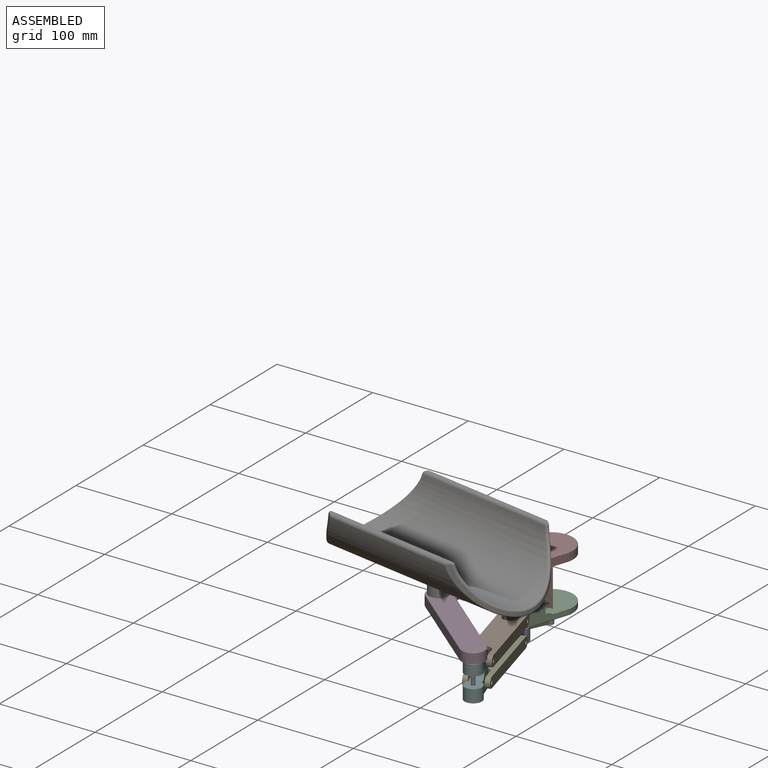
[diagram: assembled view]
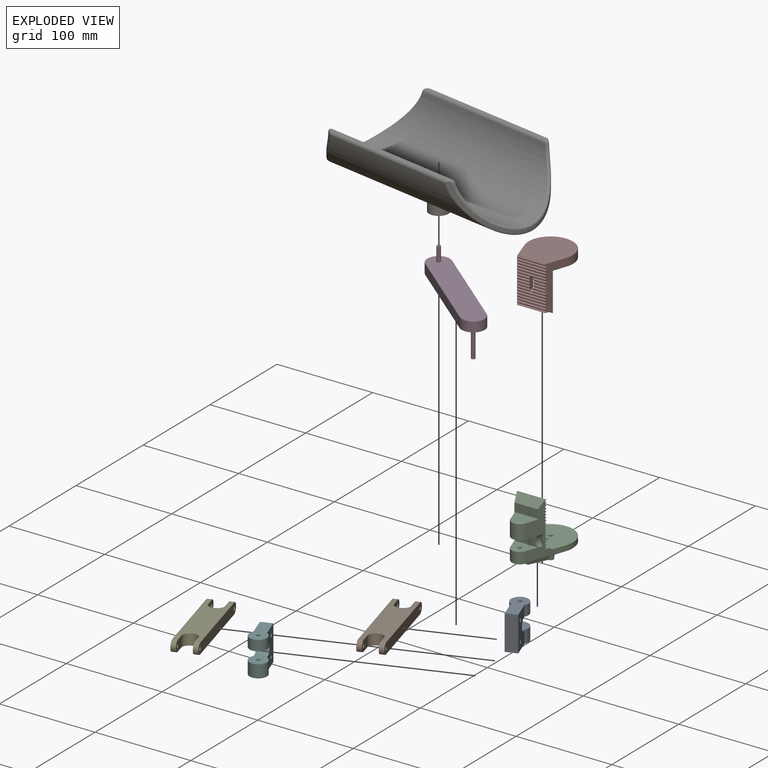
[diagram: exploded view]
GUIDED TOUR — MATED ASSEMBLY (Onshape document 0319c8b9d5b3843b0110cf96, AutoMate assembly 0319c8b9d5b3843b0110cf96_f1f17c33f9f39d658fd087db_db19f6892bc054d07afb9180_default)

This assembly has 8 components, labeled P0..P7 below (a component is one placed occurrence of a part; the same part can appear more than once), held together by 8 mates. A mate is a constraint between two components; its type names the relative motion it leaves free:
  REVOLUTE — leaves rotation about the listed axis free (a hinge),
  SLIDER — leaves translation along the listed axis free.
Axis/direction vectors are unit vectors and 'through' points are millimeter coordinates, both in the assembly's world frame.

MATES
  1. SLIDER "Slider 1": P7 <-> P2, axis (0.000, 0.000, -1.000) through (-198.20, -128.79, 38.39) mm
  2. REVOLUTE "Revolute 6": P0 <-> P4, axis (0.942, 0.336, 0.000) through (-187.83, -168.11, -3.15) mm
  3. REVOLUTE "Revolute 1": P0 <-> P1, axis (-0.942, -0.336, 0.000) through (-199.14, -172.14, 17.35) mm
  4. REVOLUTE "Revolute 7": P6 <-> P3, axis (0.000, 0.000, -1.000) through (-235.90, -221.41, 49.94) mm
  5. REVOLUTE "Revolute 4": P0 <-> P2, axis (0.000, 0.000, -1.000) through (-200.20, -151.29, 14.45) mm
  6. REVOLUTE "Revolute 3": P5 <-> P3, axis (0.000, 0.000, 1.000) through (-149.72, -292.94, 13.94) mm
  7. REVOLUTE "Revolute 5": P4 <-> P5, axis (-0.942, -0.336, 0.000) through (-150.78, -272.09, 8.54) mm
  8. REVOLUTE "Revolute 2": P5 <-> P1, axis (-0.942, -0.336, 0.000) through (-162.08, -276.12, 29.04) mm

ASSEMBLY ORDER
  1. P0 — the base component [order heuristic]
  2. P1 — core [order heuristic]
  3. P2 — core [order heuristic]
  4. P4 — core [order heuristic]
  5. P5 — core [order heuristic]
  6. P3 — core [order heuristic]
  7. P6 — core [order heuristic]
  8. P7 [order verified]
Order-tag legend:
  [order verified] — this step's position reverses a verified removal order: the component was checked to insert without passing through the ones already placed.
  [order heuristic] — the first 7 components form the assembly's core: parts whose collision-free extraction could not be verified, listed in mate-graph order.

Of the 8 components, 1 carries the full construction recipe — the FeatureScript program that regenerates the part's solid from scratch; the rest are supplied as boundary geometry only.
Each toured component is shown spotlighted twice — in the assembled view, then in the exploded view, where a leader line traces a displaced component back to its assembled socket (saturated green if recipe-attached, orange if geometry-only; every other component desaturated gray) — followed by its recipe or geometry summary and the mates that hold it.
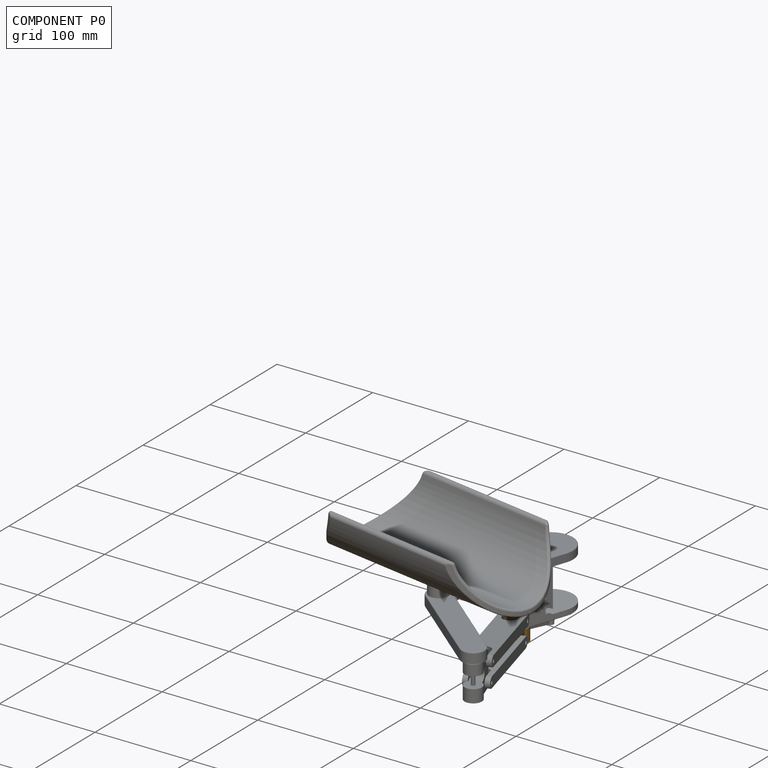
[diagram: component P0 — assembled]
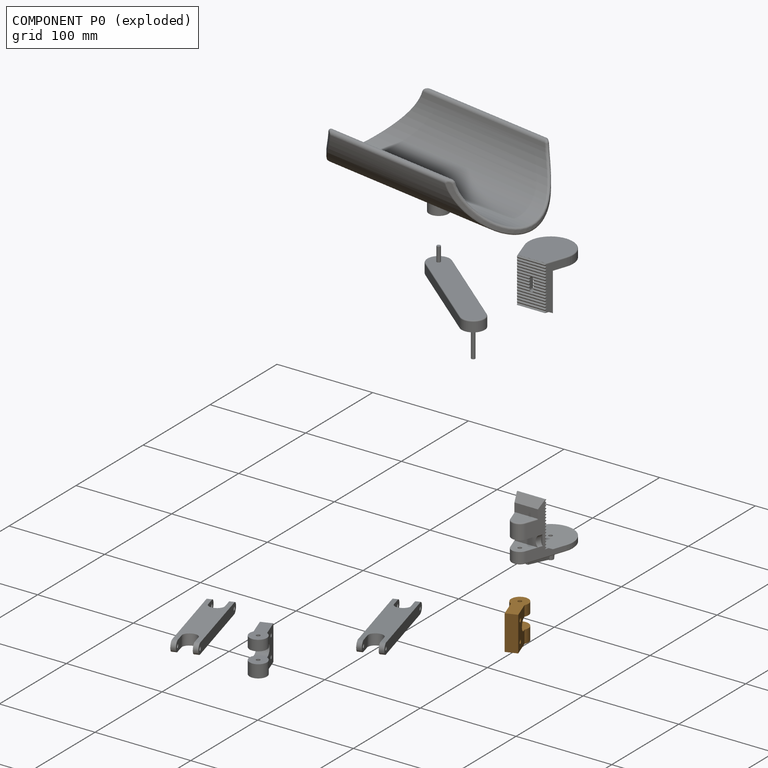
[diagram: component P0 — exploded]
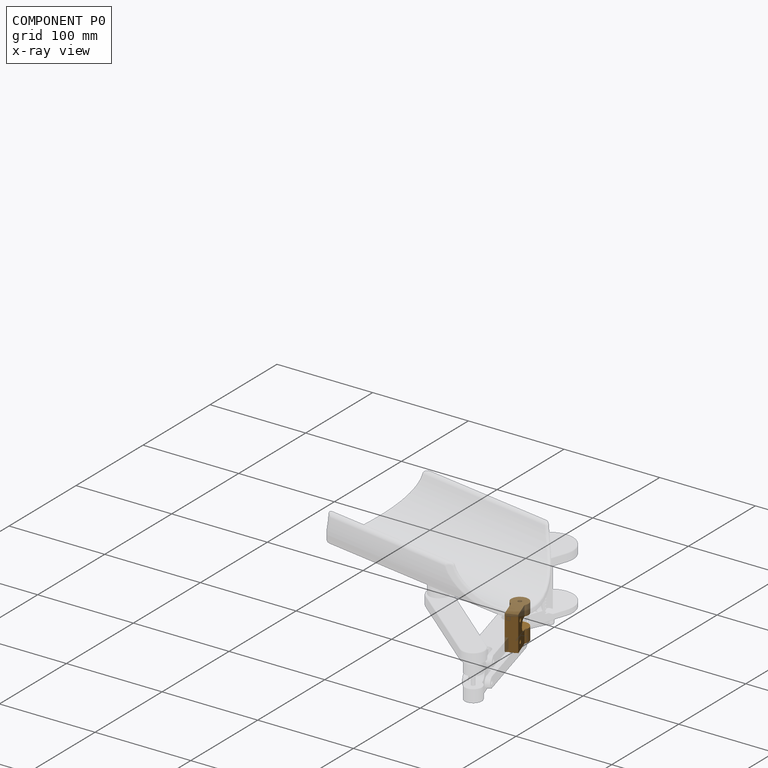
[diagram: component P0 — x-ray view]
COMPONENT P0 — geometry summary (no construction recipe available for this part):
  bounding box: 36.5 x 36.0 x 18.0 mm
  B-rep topology: 1 solid, 14 faces, 78 edges
  volume: 12984 mm^3 (55% of its bounding box)
  symmetry: mirror-symmetric across its x mid-plane
Held by: REVOLUTE mate "Revolute 6" to P4; REVOLUTE mate "Revolute 1" to P1; REVOLUTE mate "Revolute 4" to P2.
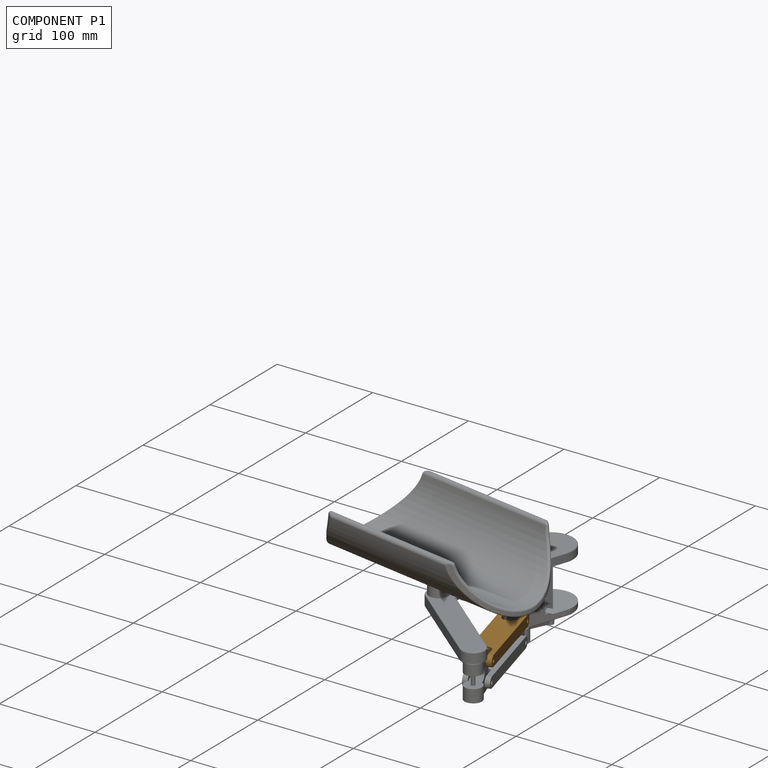
[diagram: component P1 — assembled]
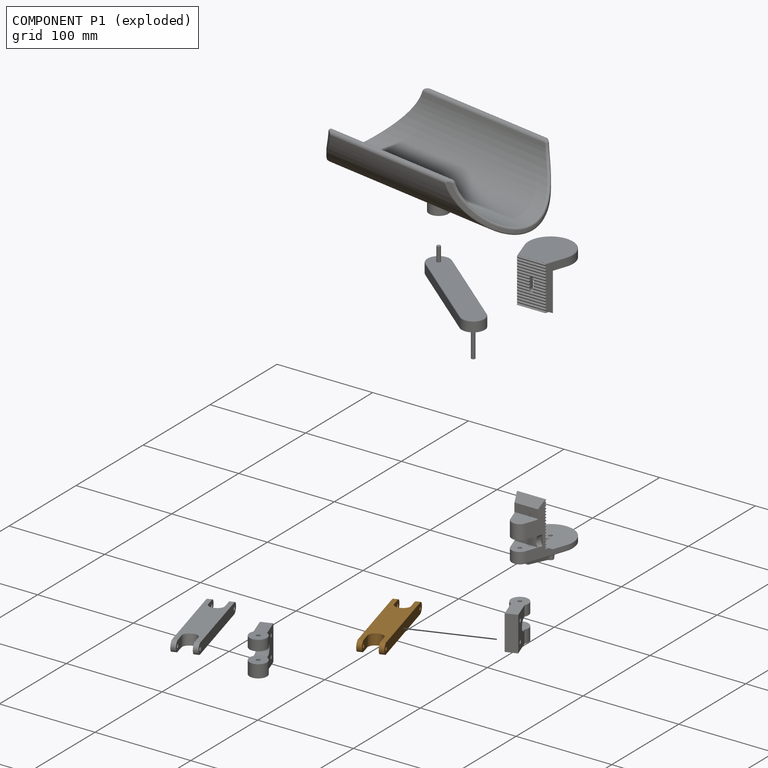
[diagram: component P1 — exploded]
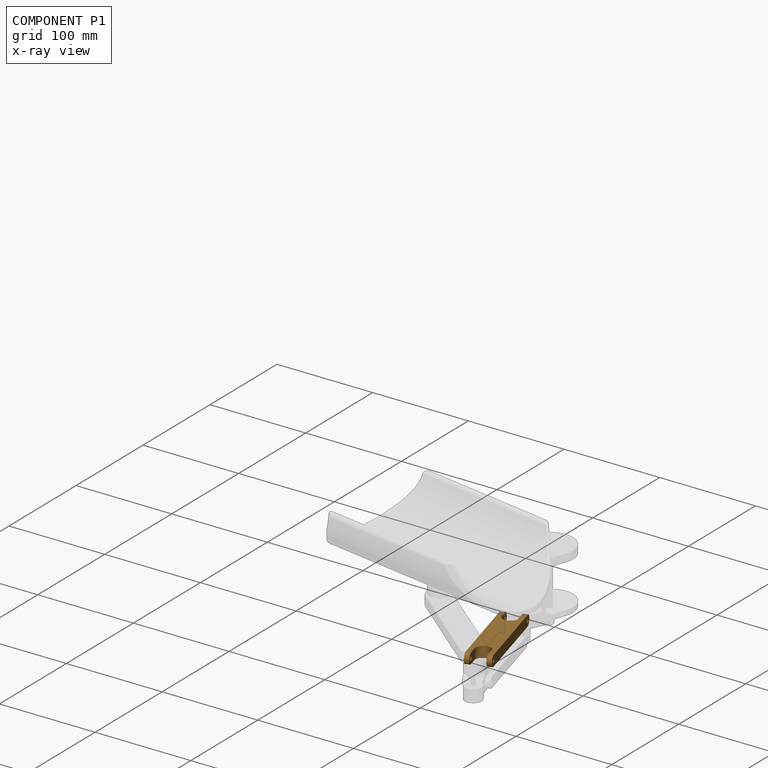
[diagram: component P1 — x-ray view]
COMPONENT P1 — geometry summary (no construction recipe available for this part):
  bounding box: 122.0 x 25.0 x 11.0 mm
  B-rep topology: 1 solid, 20 faces, 116 edges
  volume: 25155 mm^3 (75% of its bounding box)
  symmetry: 2-fold rotationally symmetric about the x axis; 2-fold rotationally symmetric about the y axis; 2-fold rotationally symmetric about the z axis; mirror-symmetric across its x mid-plane, y mid-plane, z mid-plane
Held by: REVOLUTE mate "Revolute 1" to P0; REVOLUTE mate "Revolute 2" to P5.
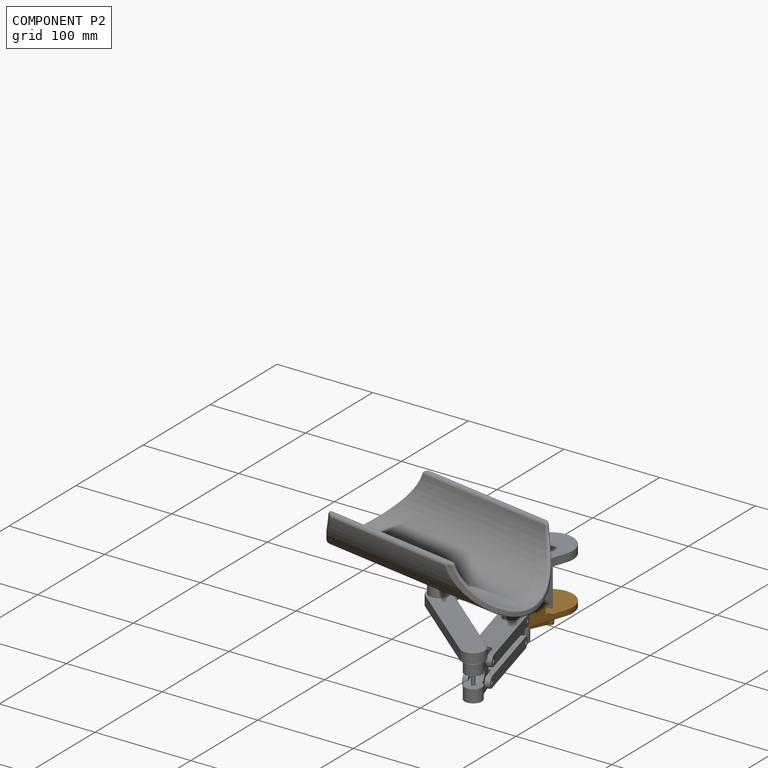
[diagram: component P2 — assembled]
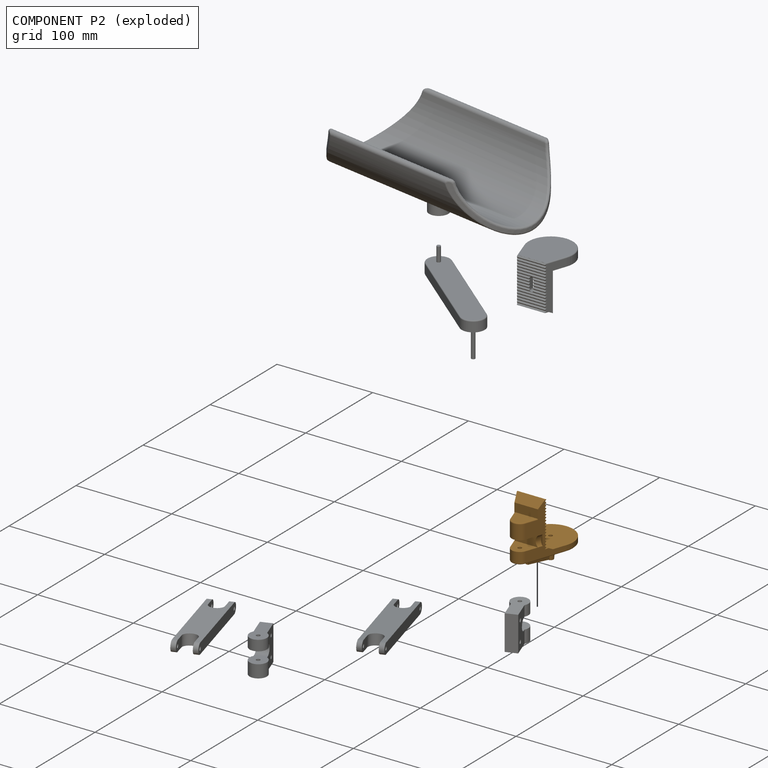
[diagram: component P2 — exploded]
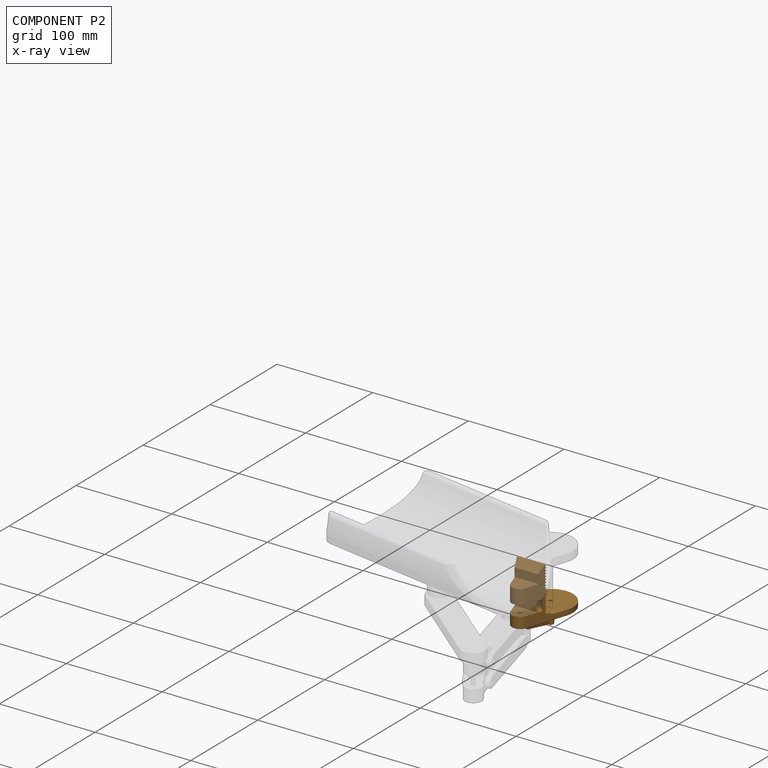
[diagram: component P2 — x-ray view]
COMPONENT P2 — geometry summary (no construction recipe available for this part):
  bounding box: 81.6 x 71.9 x 51.8 mm
  B-rep topology: 1 solid, 86 faces, 476 edges
  volume: 33285 mm^3 (11% of its bounding box)
  symmetry: mirror-symmetric across its x mid-plane
Held by: SLIDER mate "Slider 1" to P7; REVOLUTE mate "Revolute 4" to P0.
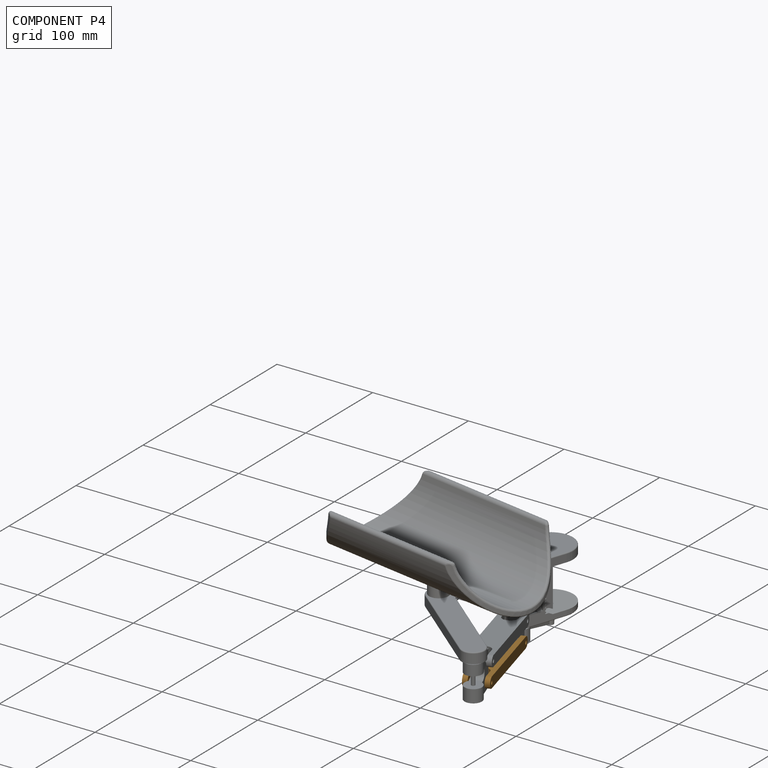
[diagram: component P4 — assembled]
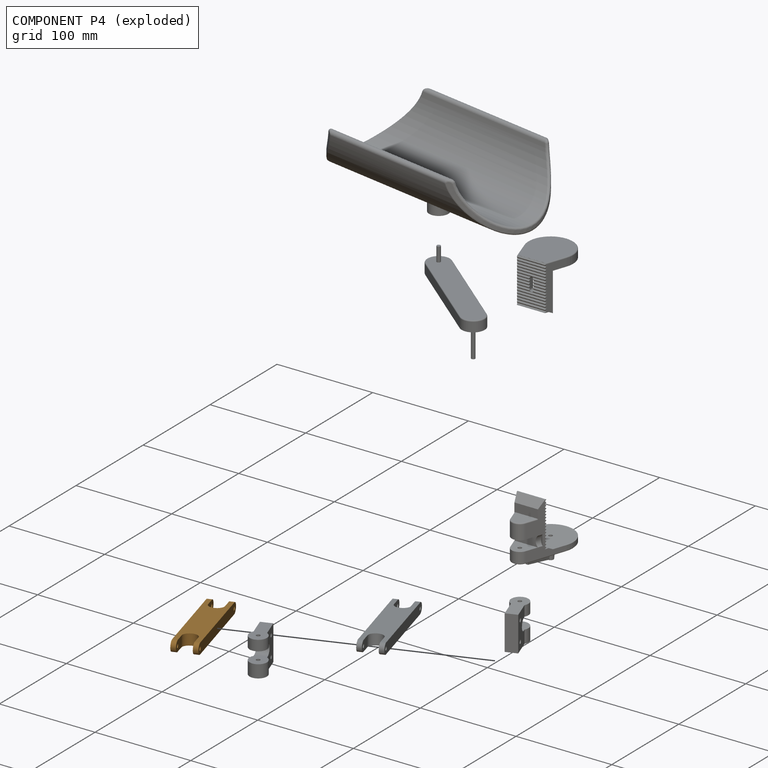
[diagram: component P4 — exploded]
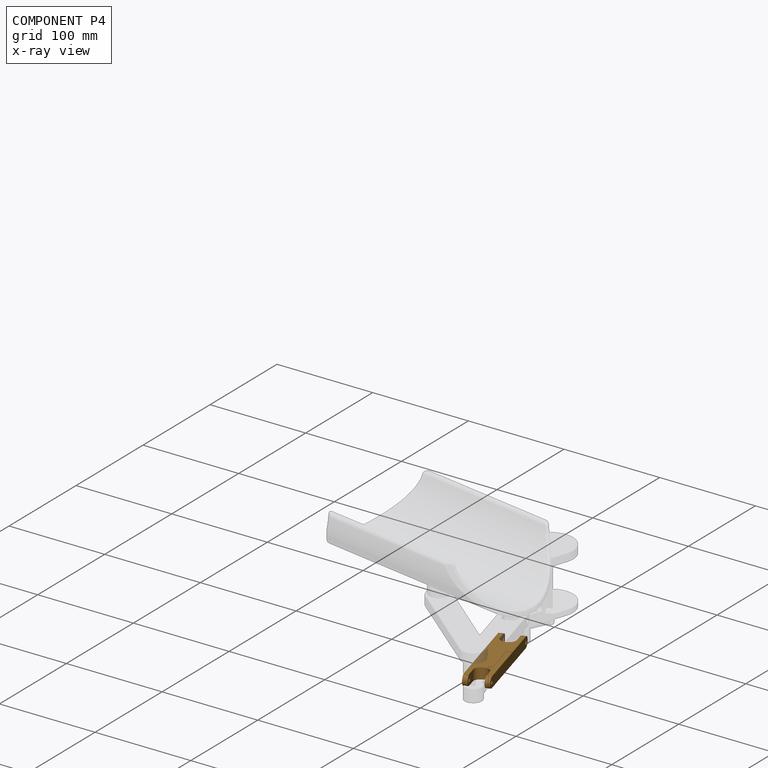
[diagram: component P4 — x-ray view]
COMPONENT P4 — geometry summary (no construction recipe available for this part):
  bounding box: 122.0 x 25.0 x 11.0 mm
  B-rep topology: 1 solid, 20 faces, 116 edges
  volume: 25155 mm^3 (75% of its bounding box)
  symmetry: 2-fold rotationally symmetric about the x axis; 2-fold rotationally symmetric about the y axis; 2-fold rotationally symmetric about the z axis; mirror-symmetric across its x mid-plane, y mid-plane, z mid-plane
Held by: REVOLUTE mate "Revolute 6" to P0; REVOLUTE mate "Revolute 5" to P5.
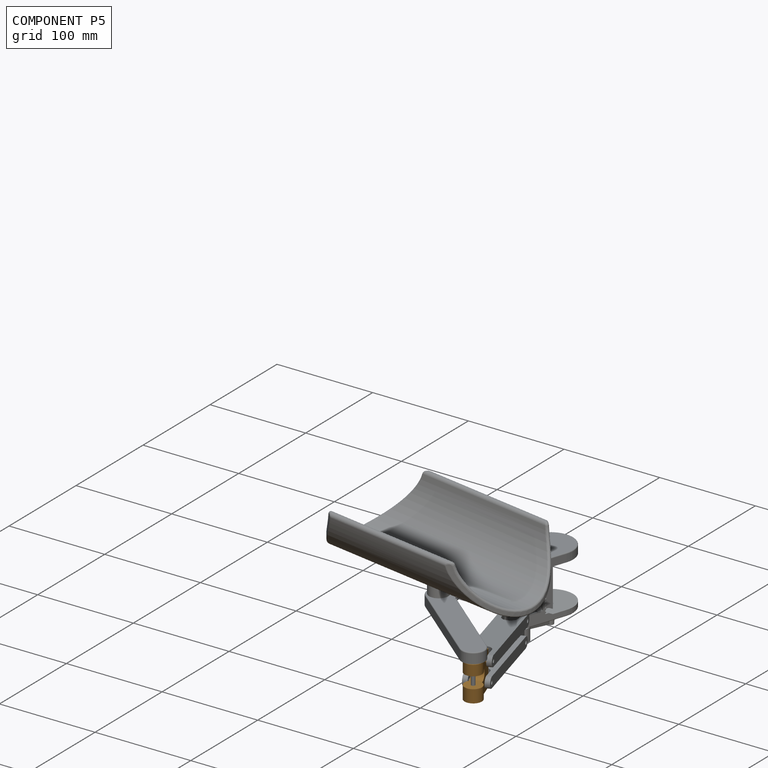
[diagram: component P5 — assembled]
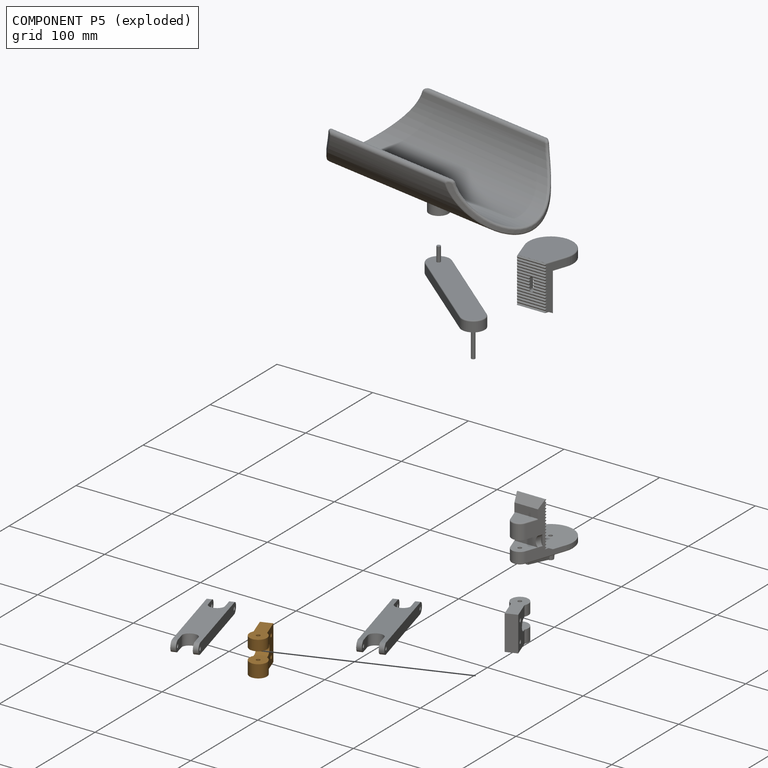
[diagram: component P5 — exploded]
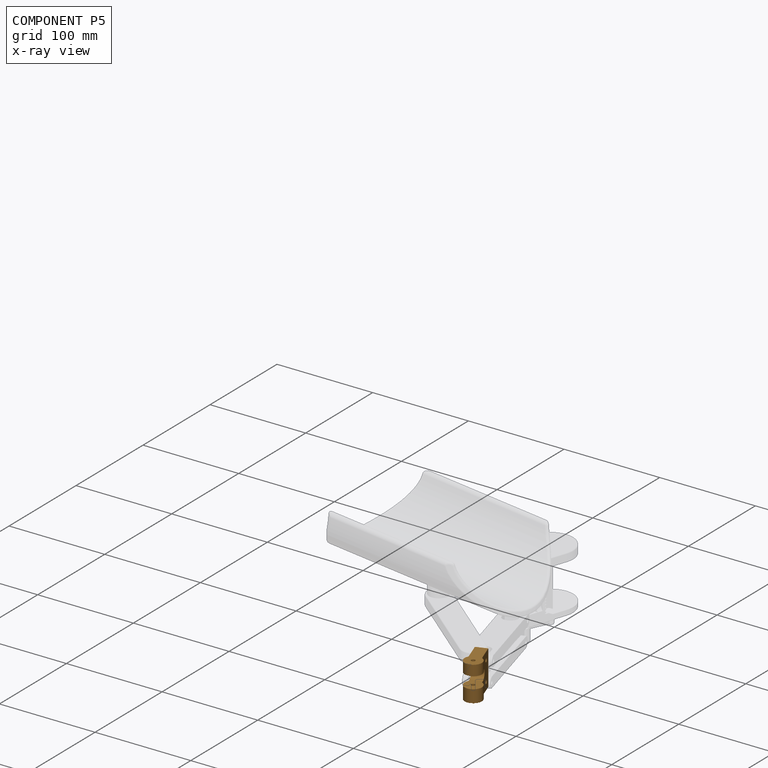
[diagram: component P5 — x-ray view]
COMPONENT P5 — geometry summary (no construction recipe available for this part):
  bounding box: 36.5 x 36.0 x 18.0 mm
  B-rep topology: 1 solid, 14 faces, 78 edges
  volume: 12984 mm^3 (55% of its bounding box)
  symmetry: mirror-symmetric across its x mid-plane
Held by: REVOLUTE mate "Revolute 3" to P3; REVOLUTE mate "Revolute 5" to P4; REVOLUTE mate "Revolute 2" to P1.
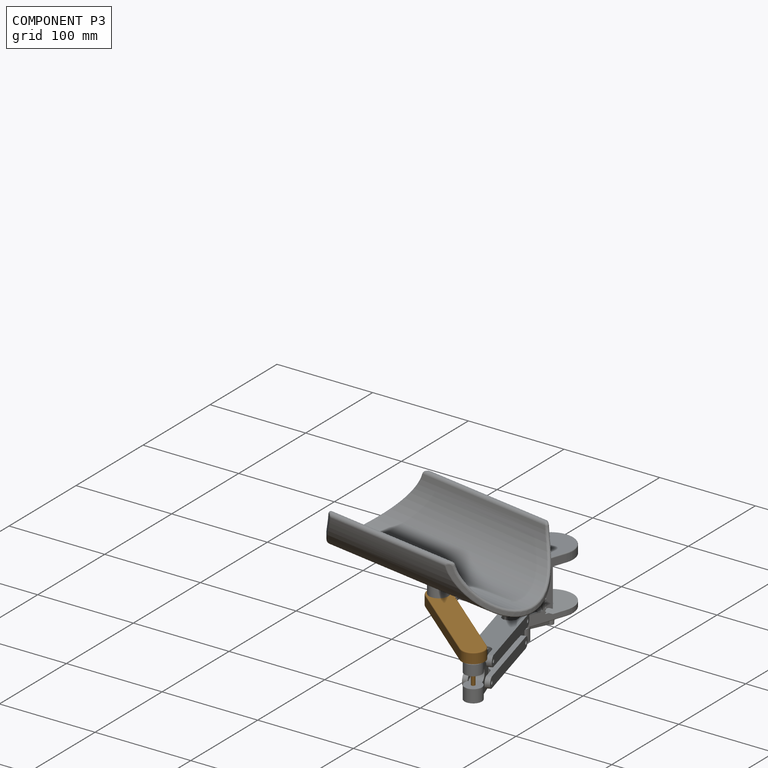
[diagram: component P3 — assembled]
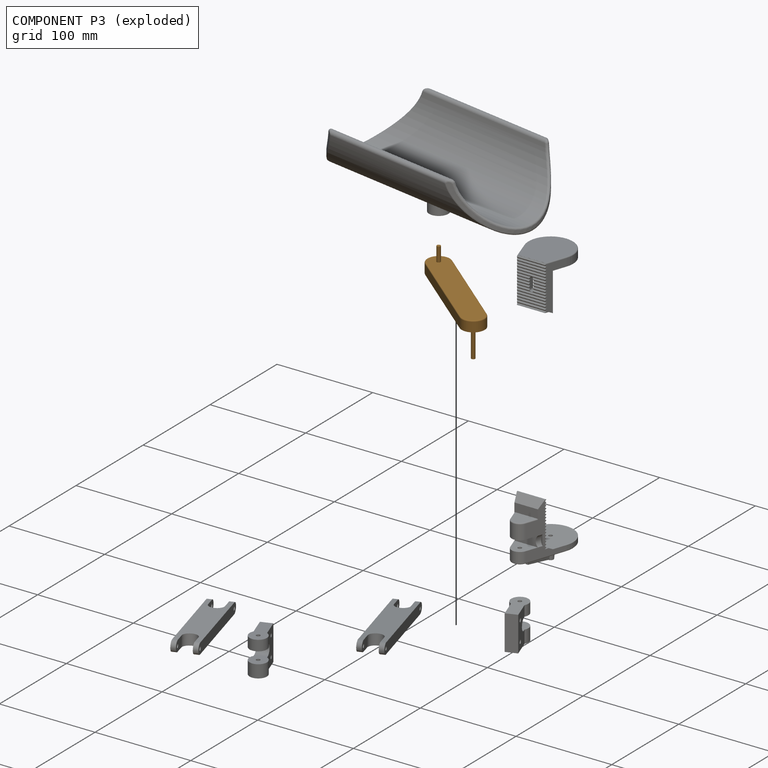
[diagram: component P3 — exploded]
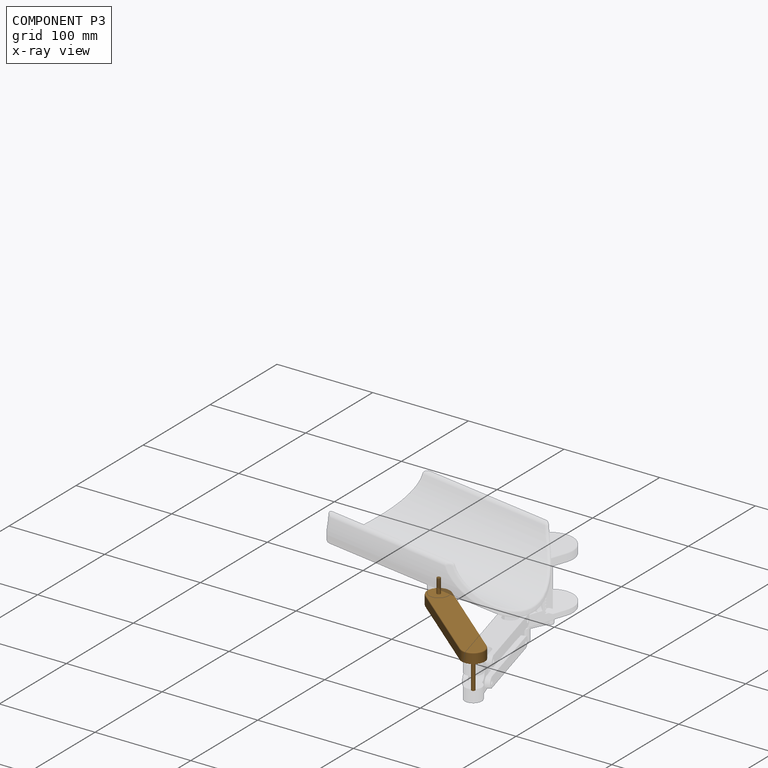
[diagram: component P3 — x-ray view]
COMPONENT P3 — geometry summary (no construction recipe available for this part):
  bounding box: 138.0 x 56.0 x 26.0 mm
  B-rep topology: 1 solid, 75 faces, 364 edges
  volume: 8703 mm^3 (4% of its bounding box)
  symmetry: mirror-symmetric across its x mid-plane
Held by: REVOLUTE mate "Revolute 7" to P6; REVOLUTE mate "Revolute 3" to P5.
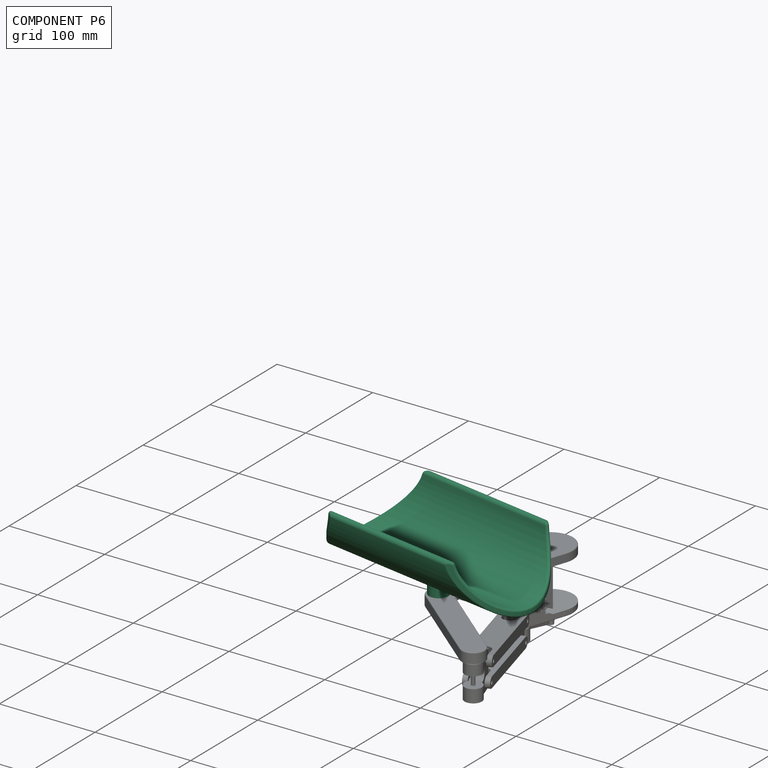
[diagram: component P6 — assembled]
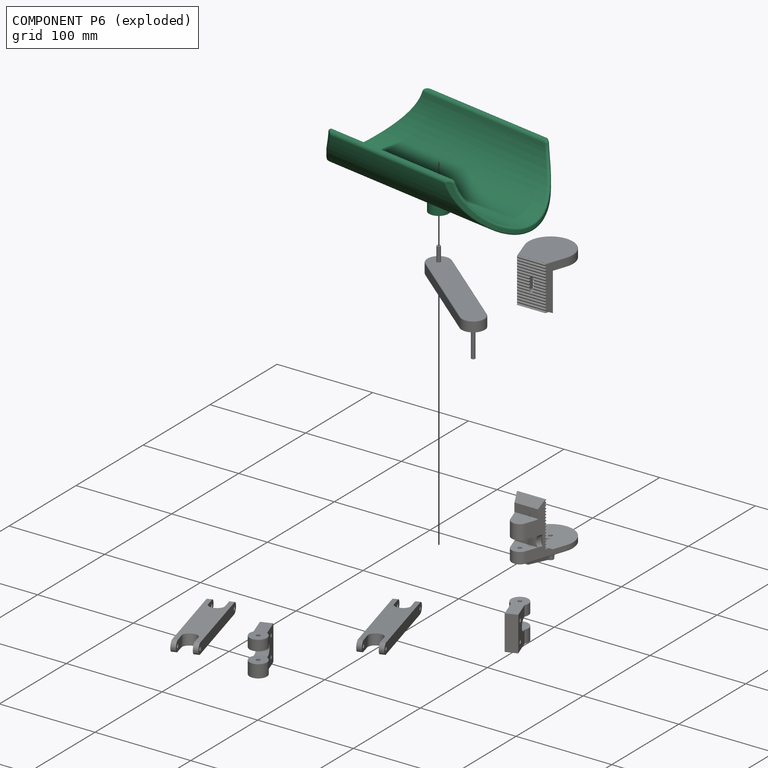
[diagram: component P6 — exploded]
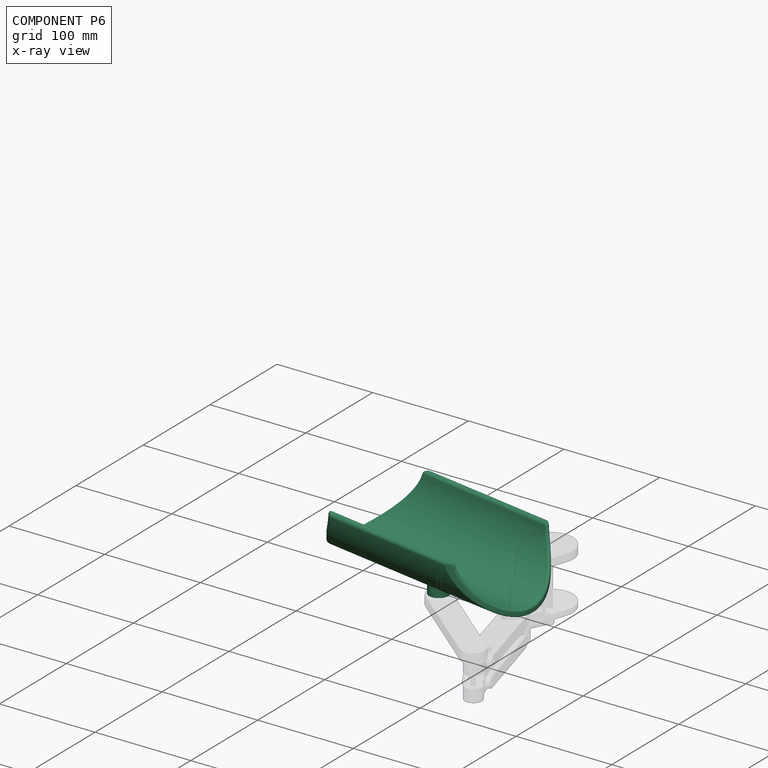
[diagram: component P6 — x-ray view]
COMPONENT P6 — recipe-attached (CADFS 00367151, mesh-verified: the recipe's output STEP matches this component's geometry to below the mesh-comparison resolution (tessellation chordal tolerance ~0.394 mm)).
Held by: REVOLUTE mate "Revolute 7" to P3.
Construction recipe (FeatureScript — the CAD program that rebuilds this solid; sketch coordinates are in the units given by the * unit suffixes, e.g. mm):

FeatureScript 1511;
import(path : "onshape/std/geometry.fs", version : "1511.0");
import(path : "onshape/std/common.fs", version : "1511.0");
const mm = millimeter;
const VERTEX = EntityType.VERTEX;
const EDGE = EntityType.EDGE;
const FACE = EntityType.FACE;
const BODY = EntityType.BODY;
function v(x, y){return vector(x, y);}
function OD(order){return orderDisambiguation(order);}
function OSD(set){return originalSetDisambiguation(set);}
function TD(topology){return topologyDisambiguation(topology);}
function TDD(query){return trueDependencyDisambiguation(query);}
function sQuery(a, b, c) {return sketchEntityQuery(a, b, c);}

annotation { "Feature Type Name" : "Feature", "Feature Type Description" : "" }
export const myFeature = defineFeature(function(context is Context, id is Id, definition is map)
    precondition{}
    {
        {
            var Q0;
            Q0=qCreatedBy(makeId("Top.planeOp"),FACE);
            var sketch = newSketch(context, id + "F0", { "sketchPlane" : qUnion([Q0])});
            skEllipse(sketch, "E0", {"center": v(0, 0) * mm, "majorRadius": 110 * mm, "minorRadius": 80 * mm, "majorAxis": v(0, 1)});
            skLineSegment(sketch, "E1", {"start": v(0, 0) * mm, "end": v(0, 110) * mm, "construction": true});
            skLineSegment(sketch, "E2", {"start": v(0, 0) * mm, "end": v(80, 0) * mm, "construction": true});
            skSolve(sketch);
        }
        {
            var Q0;
            Q0 = qSketchRegion(id + "F0", true);
            extrude(context, id + "F1", {"entities" : qUnion([Q0]), "endBound" : BoundingType.SYMMETRIC, "depth" : 150 * mm});
        }
        {
            var Q0;
            Q0=qCreatedBy(makeId("Front.planeOp"),FACE);
            var sketch = newSketch(context, id + "F2", { "sketchPlane" : qUnion([Q0])});
            skLineSegment(sketch, "E3", {"start": v(-80, -75) * mm, "end": v(-80, 75) * mm});
            skLineSegment(sketch, "E4", {"start": v(80, 75) * mm, "end": v(80, -75) * mm});
            skLineSegment(sketch, "E5", {"start": v(-55, 0) * mm, "end": v(55, 0) * mm, "construction": true});
            skArc(sketch, "E6", {"start": v(-55, 0) * mm, "mid": v(0, -47.31) * mm, "end": v(55, 0) * mm});
            skArc(sketch, "E7.0", {"start": v(-61.92, -1.05) * mm, "mid": v(0, -54.31) * mm, "end": v(61.92, -1.05) * mm});
            skArc(sketch, "E8", {"start": v(-61.92, -1.05) * mm, "mid": v(-58.98, 2.94) * mm, "end": v(-55, 0) * mm});
            skArc(sketch, "E9", {"start": v(61.92, -1.05) * mm, "mid": v(58.98, 2.94) * mm, "end": v(55, 0) * mm});
            skSolve(sketch);
        }
        {
            var Q0;
            Q0 = qSketchRegion(id + "F2", true);
            extrude(context, id + "F3", {"entities" : qUnion([Q0]), "operationType" : NewBodyOperationType.INTERSECT, "endBound" : BoundingType.SYMMETRIC, "depth" : 400 * mm});
        }
        {
            var Q0;
            Q0=qCreatedBy(makeId("Top.planeOp"),FACE);
            cPlane(context, id + "F4", {"entities" : qUnion([Q0]), "cplaneType" : CPlaneType.OFFSET, "offset" : 70 * mm, "oppositeDirection" : true, "width" : 150 * mm, "height" : 150 * mm});
        }
        {
            var Q0;
            Q0=qCreatedBy(id+"F4.planeOp",FACE);
            var sketch = newSketch(context, id + "F5", { "sketchPlane" : qUnion([Q0])});
            skCircle(sketch, "E10", {"center": v(0, 0) * mm, "radius": 10 * mm});
            skSolve(sketch);
        }
        {
            var Q0;
            Q0 = qSketchRegion(id + "F5", true);
            var Q1;
            Q1=makeQuery(id+"F1.opExtrude","SWEPT_BODY",BODY,{"disambiguationData":[OSD([sQuery(id+"F0.wireOp",EDGE,"E0")])]});
            extrude(context, id + "F6", {"entities" : qUnion([Q0]), "operationType" : NewBodyOperationType.ADD, "endBound" : BoundingType.UP_TO_BODY, "endBoundEntityBody" : qUnion([Q1]), "depth" : 25 * mm});
        }
        {
            var Q0;
            Q0=makeQuery(id+"F6.opExtrude","CAP_FACE",FACE,{"disambiguationData":[OSD([sQuery(id+"F5.wireOp",EDGE,"E10")])],"isStart":true});
            var sketch = newSketch(context, id + "F7", { "sketchPlane" : qUnion([Q0])});
            skCircle(sketch, "E11", {"center": v(0, 0) * mm, "radius": 3.5 * mm});
            skSolve(sketch);
        }
        {
            var Q0;
            Q0 = qSketchRegion(id + "F7", true);
            extrude(context, id + "F8", {"entities" : qUnion([Q0]), "operationType" : NewBodyOperationType.REMOVE, "oppositeDirection" : true, "depth" : 10 * mm});
        }
        {
            var Q0;
            Q0=makeQuery(id+"F3.boolean.opBoolean","SPLIT",FACE,{"disambiguationData":[OD(0.0)],"derivedFrom":makeQuery(id+"F1.opExtrude","SWEPT_FACE",FACE,{"disambiguationData":[OSD([sQuery(id+"F0.wireOp",EDGE,"E0")])]})});
            var Q1;
            Q1=makeQuery(id+"F3.boolean.opBoolean","SPLIT",FACE,{"disambiguationData":[OD(1.0)],"derivedFrom":makeQuery(id+"F1.opExtrude","SWEPT_FACE",FACE,{"disambiguationData":[OSD([sQuery(id+"F0.wireOp",EDGE,"E0")])]})});
            fillet(context, id + "F9", {"entities" : qUnion([Q0, Q1]), "radius" : 2 * mm, "tangentPropagation" : true, "allowEdgeOverflow" : false});
        }
    });
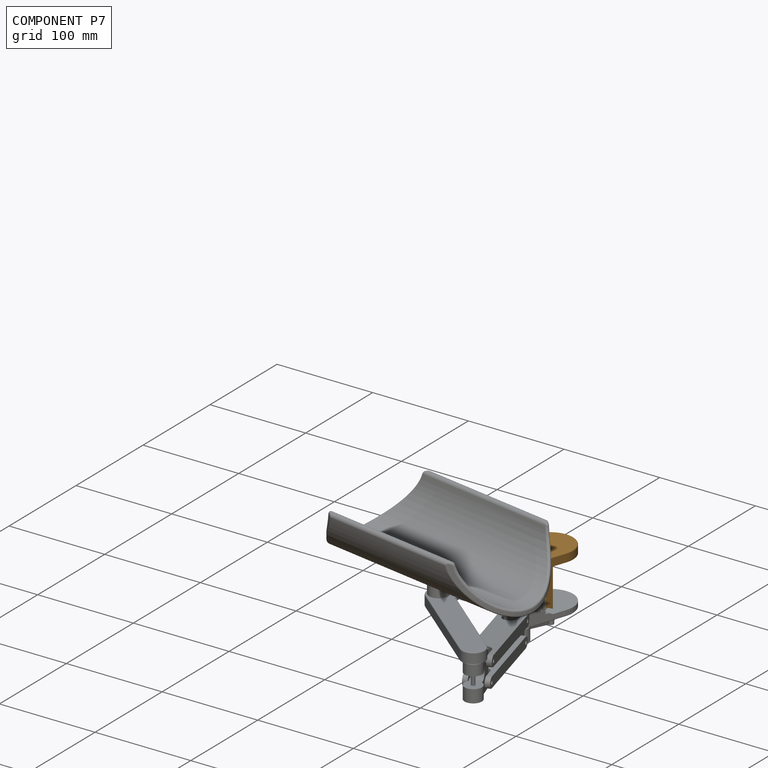
[diagram: component P7 — assembled]
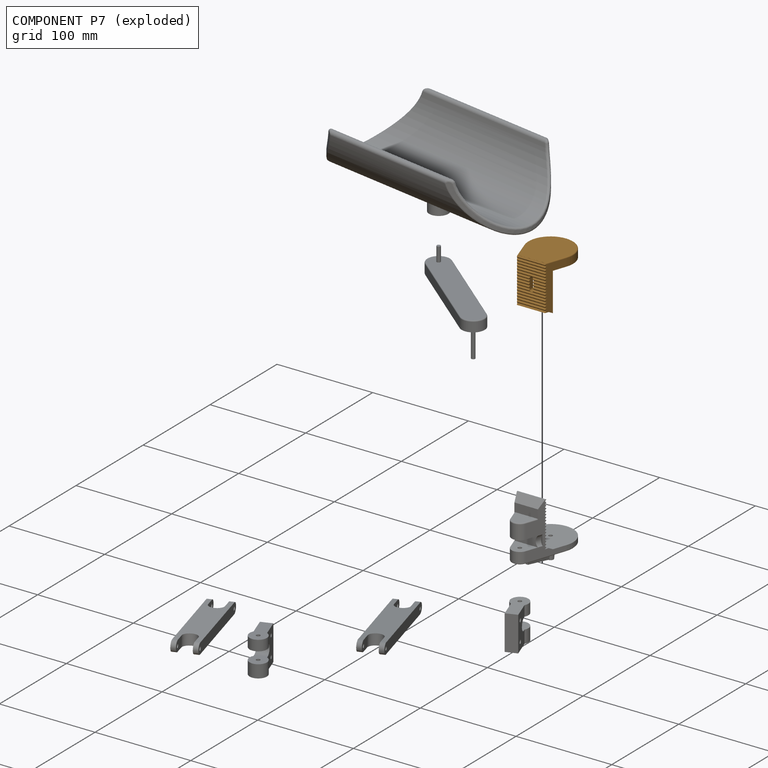
[diagram: component P7 — exploded]
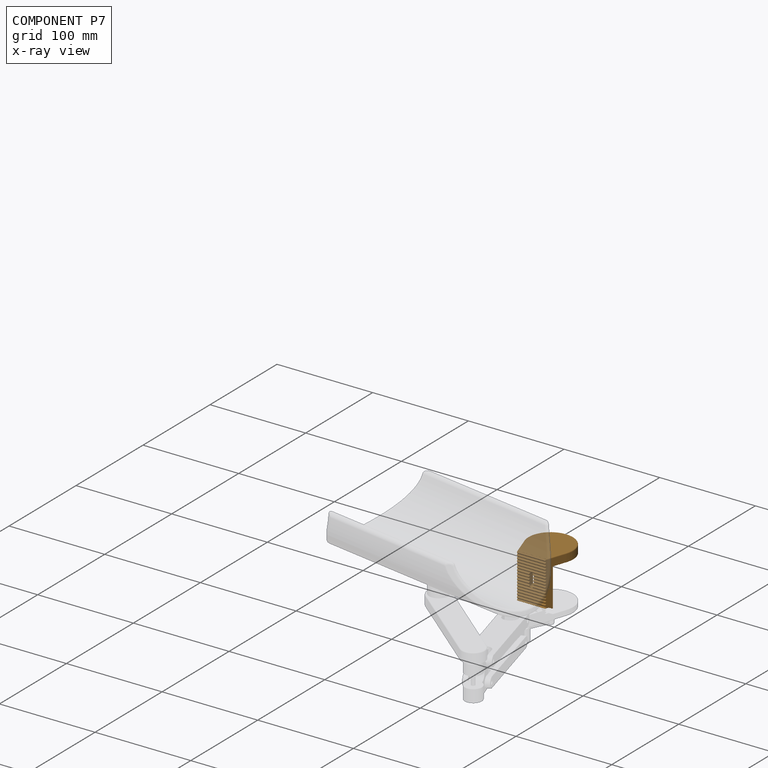
[diagram: component P7 — x-ray view]
COMPONENT P7 — geometry summary (no construction recipe available for this part):
  bounding box: 54.9 x 50.9 x 49.0 mm
  B-rep topology: 1 solid, 63 faces, 362 edges
  volume: 26537 mm^3 (19% of its bounding box)
  symmetry: mirror-symmetric across its x mid-plane
Held by: SLIDER mate "Slider 1" to P2.
PROVENANCE & LICENSES
Assembly (occurrences, transforms, mates, per-part STEP geometry): AutoMate dataset, Zenodo record 7776208, CC0.
Construction recipes: CADFS (HuggingFace VladPyatov/CADFS, CC-BY-4.0, layered over the ABC dataset), FeatureScript reconstruction programs keyed by ABC model id.
Join: ABC meta listings map ABC model id -> Onshape documentId; within a shared document, parts are matched by geometric signature (bounding-box dims + volume at 0.1% relative tolerance, exact B-rep face/solid counts).
Verification: 1 of this assembly's 8 components carries a recipe attachment, and every attachment is mesh-verified: the CADFS STEP and the AutoMate member STEP were compared as meshes in their shared local frame (symmetric sampled-point-to-mesh distance); worst across the 1 attachment: below the mesh-comparison resolution (tessellation chordal tolerance ~0.394 mm) on a 263 mm part.
Renders: orthographic iso camera (az 35 / el 25); the floor grid conveys scale (grid pitch printed in each image; no ruler). In the exploded view each component is displaced by its stored offset vector: the offsets alone carry the explosion direction (mate normal/axis signs are not orientation cues and do not encode it), and separation distances are assigned per mate-chain, not proportionally to assembly-order depth.
